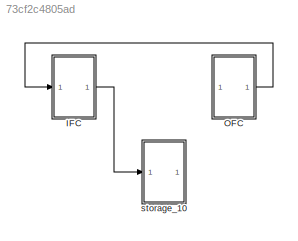
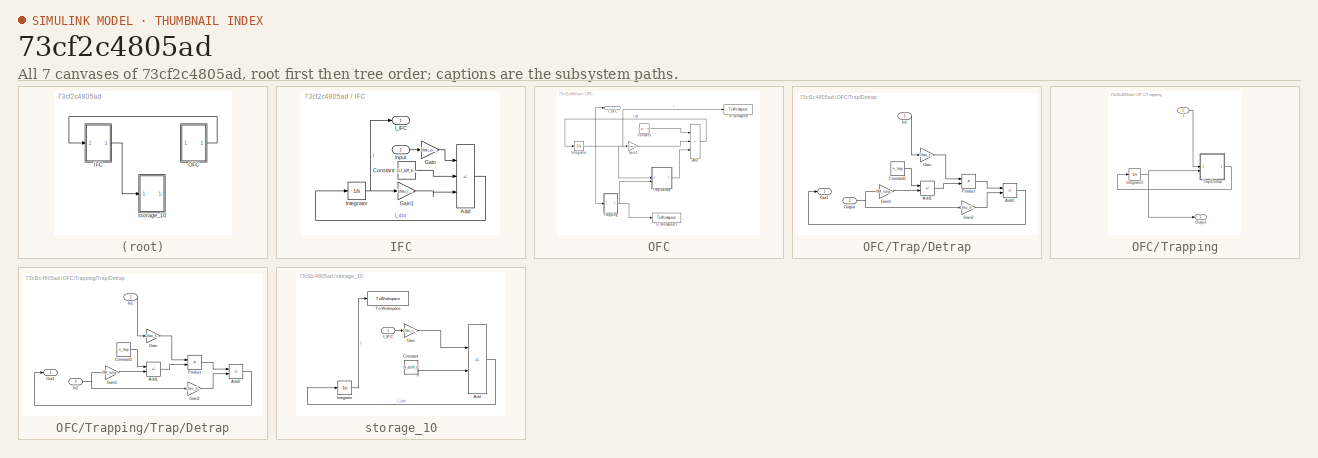
[diagram: thumbnail index - all 7 canvases of the model, root first then tree order]
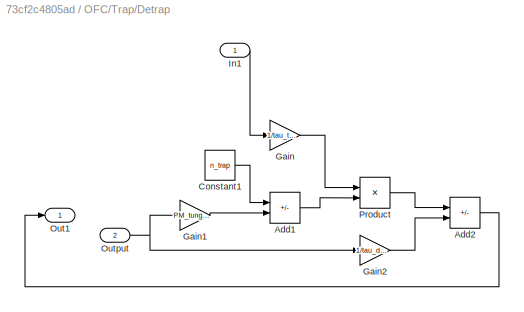
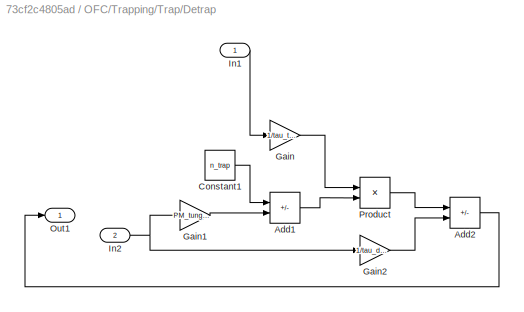
MODEL slx_73cf2c4805ad
KIND model
CONFIG AbsTol = auto
CONFIG EnableMultiTasking = off
CONFIG FixedStep = auto
CONFIG MaxStep = 1000
CONFIG MinStep = auto
CONFIG RelTol = 1e-5
CONFIG SampleTimeConstraint = Unconstrained
CONFIG SolverName = VariableStepAuto
CONFIG StartTime = 0.0
CONFIG StopTime = 3600*8760*3
BLOCK [SubSystem] IFC
  AncestorBlock = arc/fuelCleanUp_8
BLOCK [Sum] IFC/Add
  IconShape = rectangular
  Inputs = ++-
BLOCK [Constant] IFC/Constant
  Value = (1-f_b)/f_b*N_dot
BLOCK [Gain] IFC/Gain
  Gain = 1/tau_ofc
BLOCK [Gain] IFC/Gain1
  Gain = 1/tau_ifc
BLOCK [Outport] IFC/I_IFC
BLOCK [Inport] IFC/Input
BLOCK [Integrator] IFC/Integrator
BLOCK [SubSystem] OFC
  AncestorBlock = arc/fuelCleanUp_8
BLOCK [Sum] OFC/Add
  IconShape = rectangular
  Inputs = +--
BLOCK [Constant] OFC/Constant
  Value = N_dot * TBR
BLOCK [Gain] OFC/Gain1
  Gain = 1/tau_ofc
BLOCK [Outport] OFC/I_OFC
BLOCK [Integrator] OFC/Integrator
BLOCK [ToWorkspace] OFC/To Workspace
  FixptAsFi = on
  MaxDataPoints = inf
  SampleTime = -1
  VariableName = I_mobile
BLOCK [ToWorkspace] OFC/To Workspace1
  FixptAsFi = on
  MaxDataPoints = inf
  SampleTime = -1
  VariableName = I_trapped
BLOCK [SubSystem] OFC/Trap//Detrap
BLOCK [Sum] OFC/Trap//Detrap/Add1
  IconShape = rectangular
  Inputs = +-
BLOCK [Sum] OFC/Trap//Detrap/Add2
  IconShape = rectangular
  Inputs = +-
BLOCK [Constant] OFC/Trap//Detrap/Constant1
  Value = n_trap
BLOCK [Gain] OFC/Trap//Detrap/Gain
  Gain = 1/tau_trap/n_solute
BLOCK [Gain] OFC/Trap//Detrap/Gain1
  Gain = PM_tungsten/PM_tritium/M_tungsten
BLOCK [Gain] OFC/Trap//Detrap/Gain2
  Gain = 1/tau_detrap
BLOCK [Inport] OFC/Trap//Detrap/In1
BLOCK [Outport] OFC/Trap//Detrap/Out1
BLOCK [Inport] OFC/Trap//Detrap/Output
  Port = 2
BLOCK [Product] OFC/Trap//Detrap/Product
BLOCK [SubSystem] OFC/Trapping
BLOCK [Inport] OFC/Trapping/I
BLOCK [Integrator] OFC/Trapping/Integrator1
BLOCK [Outport] OFC/Trapping/Output
BLOCK [SubSystem] OFC/Trapping/Trap//Detrap
BLOCK [Sum] OFC/Trapping/Trap//Detrap/Add1
  IconShape = rectangular
  Inputs = +-
BLOCK [Sum] OFC/Trapping/Trap//Detrap/Add2
  IconShape = rectangular
  Inputs = +-
BLOCK [Constant] OFC/Trapping/Trap//Detrap/Constant1
  Value = n_trap
BLOCK [Gain] OFC/Trapping/Trap//Detrap/Gain
  Gain = 1/tau_trap/n_solute
BLOCK [Gain] OFC/Trapping/Trap//Detrap/Gain1
  Gain = PM_tungsten/PM_tritium/M_tungsten
BLOCK [Gain] OFC/Trapping/Trap//Detrap/Gain2
  Gain = 1/tau_detrap
BLOCK [Inport] OFC/Trapping/Trap//Detrap/In1
BLOCK [Inport] OFC/Trapping/Trap//Detrap/In2
  Port = 2
BLOCK [Outport] OFC/Trapping/Trap//Detrap/Out1
BLOCK [Product] OFC/Trapping/Trap//Detrap/Product
BLOCK [SubSystem] storage_10
  AncestorBlock = arc/storage_10
BLOCK [Sum] storage_10/Add
  IconShape = rectangular
  Inputs = +-
BLOCK [Constant] storage_10/Constant
  Value = N_dot/f_b
BLOCK [Gain] storage_10/Gain
  Gain = 1/tau_ifc
BLOCK [Inport] storage_10/I_IFC
BLOCK [Integrator] storage_10/Integrator
  InitialCondition = I_s_0
BLOCK [ToWorkspace] storage_10/To Workspace
  FixptAsFi = on
  MaxDataPoints = inf
  SampleTime = -1
  VariableName = I_10
LINE IFC:1 -> storage_10:1
LINE OFC:1 -> IFC:1
